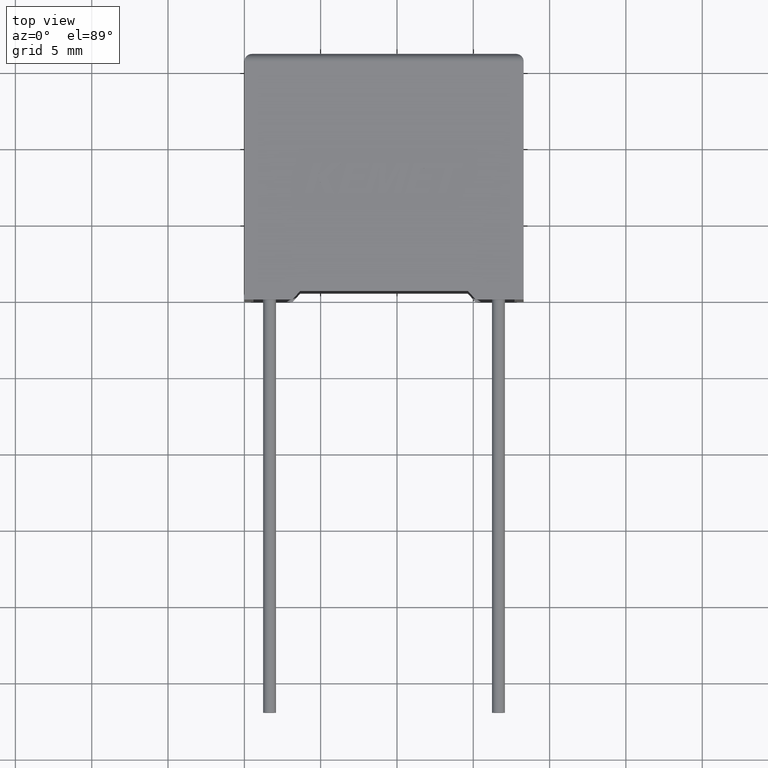
[diagram: clean part render]
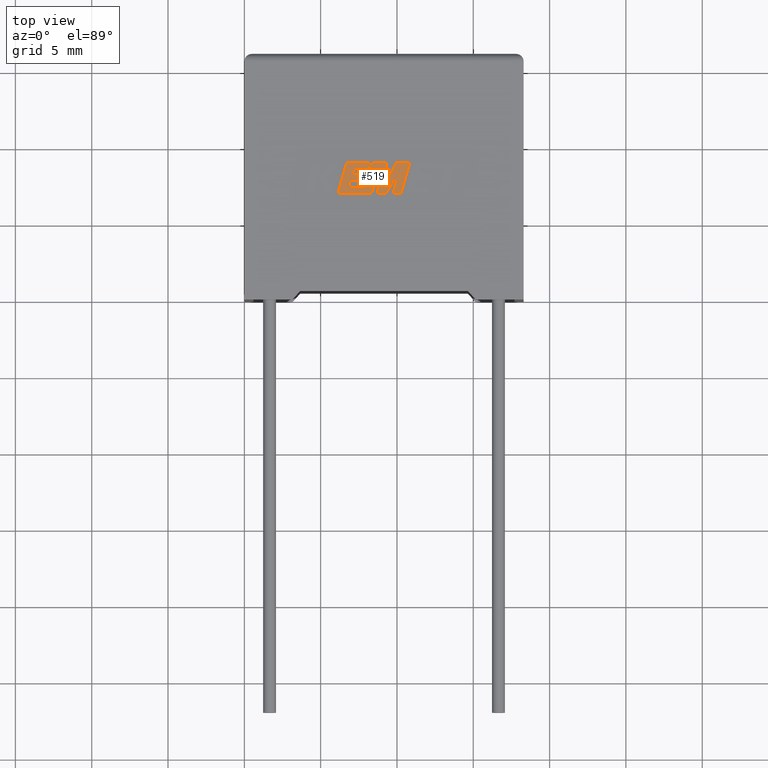
[diagram: same view with one face highlighted and labeled with its STEP entity id]
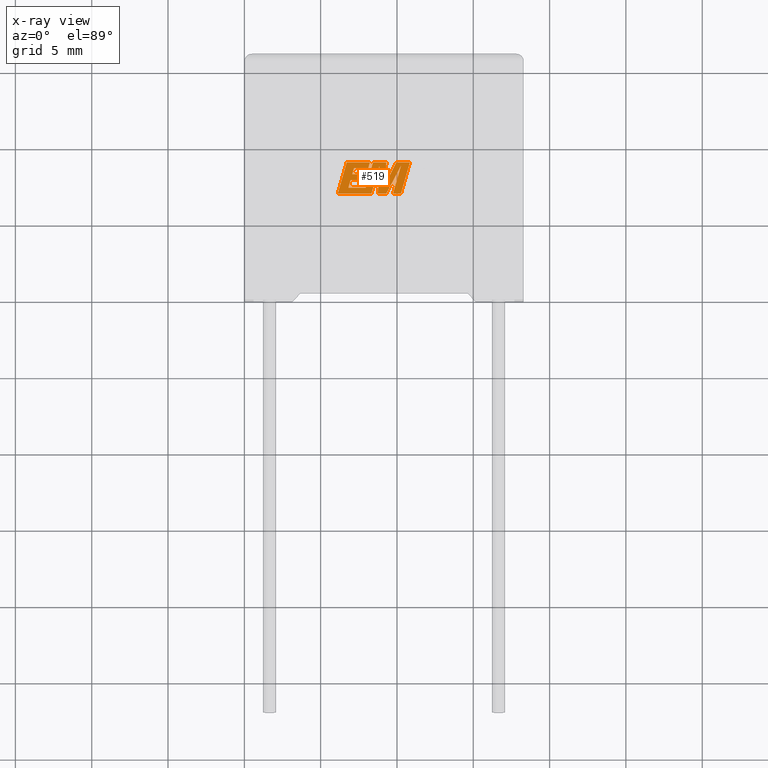
[diagram: x-ray of the same camera — body ghosted, the highlighted face saturated]
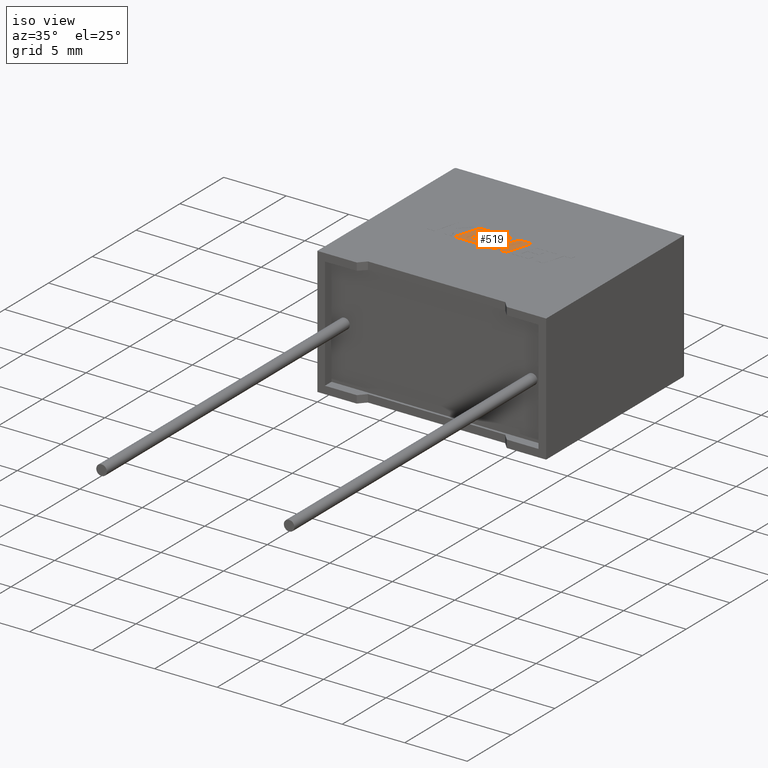
[diagram: same view with one face highlighted and labeled with its STEP entity id]
A machine part, top view. The second image highlights one B-rep face of the part: STEP entity #519.
The next image is the same camera in x-ray: the body ghosted, the highlighted face saturated — about 0% of this face is hidden behind the body in this view.
A second angle (iso view) of the same face is appended — the face is thin or edge-on in the first view.
In plain terms, the highlighted planar face has unit normal (0, 0, -1).
Its self-contained STEP definition (entity closure, byte-faithful):
#2 = DIRECTION ( 'NONE',  ( 1.000000000000000000, 4.783739767952858963E-16, 0.000000000000000000 ) ) ;
#4 = CARTESIAN_POINT ( 'NONE',  ( 9.300475089700450226, 8.977583738474084640, 10.20499999999999829 ) ) ;
#6 = DIRECTION ( 'NONE',  ( -1.000000000000000000, 0.000000000000000000, 0.000000000000000000 ) ) ;
#21 = CARTESIAN_POINT ( 'NONE',  ( 6.814202693454946669, 7.317796892129776687, 10.20499999999999829 ) ) ;
#46 = VECTOR ( 'NONE', #1173, 1000.000000000000000 ) ;
#49 = CARTESIAN_POINT ( 'NONE',  ( 9.736741848859448822, 6.927829999999937094, 10.20499999999999829 ) ) ;
#73 = CARTESIAN_POINT ( 'NONE',  ( 8.748873504561524683, 6.927829999999937094, 10.20499999999999829 ) ) ;
#111 = DIRECTION ( 'NONE',  ( -0.4443210308329518243, -0.8958676361826801715, 0.000000000000000000 ) ) ;
#137 = VERTEX_POINT ( 'NONE', #652 ) ;
#171 = EDGE_CURVE ( 'NONE', #1276, #3015, #2109, .T. ) ;
#181 = VECTOR ( 'NONE', #6, 1000.000000000000000 ) ;
#187 = CARTESIAN_POINT ( 'NONE',  ( 8.223106891968908982, 8.977583738474084640, 10.20499999999999829 ) ) ;
#208 = ORIENTED_EDGE ( 'NONE', *, *, #671, .T. ) ;
#212 = DIRECTION ( 'NONE',  ( -0.2765379750249963853, -0.9610029908221278117, 0.000000000000000000 ) ) ;
#217 = EDGE_CURVE ( 'NONE', #374, #2048, #1009, .T. ) ;
#221 = VERTEX_POINT ( 'NONE', #1272 ) ;
#253 = EDGE_CURVE ( 'NONE', #1435, #2728, #305, .T. ) ;
#255 = CARTESIAN_POINT ( 'NONE',  ( 9.221647422191399102, 7.513213331603875389, 10.20499999999999829 ) ) ;
#259 = LINE ( 'NONE', #647, #916 ) ;
#287 = DIRECTION ( 'NONE',  ( -0.05596501978069369498, -0.9984327301130239141, 0.000000000000000000 ) ) ;
#288 = EDGE_CURVE ( 'NONE', #2048, #590, #1489, .T. ) ;
#305 = LINE ( 'NONE', #2382, #1980 ) ;
#322 = ORIENTED_EDGE ( 'NONE', *, *, #1758, .T. ) ;
#330 = DIRECTION ( 'NONE',  ( -1.000000000000000000, 0.000000000000000000, 0.000000000000000000 ) ) ;
#366 = CARTESIAN_POINT ( 'NONE',  ( 10.84693527213674891, 8.977583738474084640, 10.20499999999999829 ) ) ;
#374 = VERTEX_POINT ( 'NONE', #2555 ) ;
#398 = EDGE_CURVE ( 'NONE', #2728, #137, #1652, .T. ) ;
#410 = LINE ( 'NONE', #1593, #2690 ) ;
#425 = DIRECTION ( 'NONE',  ( 0.2759782365590697228, 0.9611638845408965182, 0.000000000000000000 ) ) ;
#430 = VERTEX_POINT ( 'NONE', #987 ) ;
#438 = CARTESIAN_POINT ( 'NONE',  ( 6.814202693454946669, 7.317796892129776687, 10.20499999999999829 ) ) ;
#444 = CARTESIAN_POINT ( 'NONE',  ( 9.221647422191399102, 7.513213331603875389, 10.20499999999999829 ) ) ;
#446 = LINE ( 'NONE', #3041, #849 ) ;
#473 = VECTOR ( 'NONE', #662, 1000.000000000000000 ) ;
#519 = ADVANCED_FACE ( 'NONE', ( #2472 ), #1021, .F. ) ;
#520 = EDGE_CURVE ( 'NONE', #221, #2698, #2508, .T. ) ;
#522 = LINE ( 'NONE', #1454, #844 ) ;
#565 = VERTEX_POINT ( 'NONE', #2456 ) ;
#590 = VERTEX_POINT ( 'NONE', #2575 ) ;
#619 = CARTESIAN_POINT ( 'NONE',  ( -0.2224830842431323175, 0.2934434973618236242, 10.20499999999999829 ) ) ;
#621 = EDGE_CURVE ( 'NONE', #565, #2033, #2077, .T. ) ;
#642 = DIRECTION ( 'NONE',  ( 0.2763139702539113007, 0.9610674221107073922, 0.000000000000000000 ) ) ;
#647 = CARTESIAN_POINT ( 'NONE',  ( 7.178404472403894232, 8.587423639161658073, 10.20499999999999829 ) ) ;
#651 = VERTEX_POINT ( 'NONE', #73 ) ;
#652 = CARTESIAN_POINT ( 'NONE',  ( 7.067466152442150040, 8.206169767896147604, 10.20499999999999829 ) ) ;
#662 = DIRECTION ( 'NONE',  ( -1.000000000000000000, 0.000000000000000000, 0.000000000000000000 ) ) ;
#671 = EDGE_CURVE ( 'NONE', #2938, #374, #2374, .T. ) ;
#695 = CARTESIAN_POINT ( 'NONE',  ( 9.300475089700450226, 8.977583738474084640, 10.20499999999999829 ) ) ;
#707 = EDGE_CURVE ( 'NONE', #2698, #1308, #1255, .T. ) ;
#763 = ORIENTED_EDGE ( 'NONE', *, *, #1000, .T. ) ;
#768 = DIRECTION ( 'NONE',  ( 0.2732148821746286371, 0.9619530280415482526, 0.000000000000000000 ) ) ;
#805 = VERTEX_POINT ( 'NONE', #1667 ) ;
#818 = EDGE_CURVE ( 'NONE', #2442, #651, #522, .T. ) ;
#823 = DIRECTION ( 'NONE',  ( 0.000000000000000000, 0.000000000000000000, -1.000000000000000000 ) ) ;
#844 = VECTOR ( 'NONE', #287, 1000.000000000000227 ) ;
#849 = VECTOR ( 'NONE', #1908, 1000.000000000000000 ) ;
#862 = ORIENTED_EDGE ( 'NONE', *, *, #288, .T. ) ;
#867 = CARTESIAN_POINT ( 'NONE',  ( 9.736741848859448822, 6.927829999999937094, 10.20499999999999829 ) ) ;
#885 = CARTESIAN_POINT ( 'NONE',  ( 9.295319520239521793, 6.927829999999937094, 10.20499999999999829 ) ) ;
#892 = ORIENTED_EDGE ( 'NONE', *, *, #915, .T. ) ;
#898 = DIRECTION ( 'NONE',  ( 0.2740217765954066076, 0.9617234872620595842, 0.000000000000000000 ) ) ;
#899 = VERTEX_POINT ( 'NONE', #444 ) ;
#902 = VECTOR ( 'NONE', #1004, 1000.000000000000227 ) ;
#915 = EDGE_CURVE ( 'NONE', #3015, #2442, #410, .T. ) ;
#916 = VECTOR ( 'NONE', #1157, 1000.000000000000000 ) ;
#927 = VERTEX_POINT ( 'NONE', #2308 ) ;
#934 = CARTESIAN_POINT ( 'NONE',  ( 6.959357382888240018, 7.827240615357460740, 10.20499999999999829 ) ) ;
#948 = VECTOR ( 'NONE', #1284, 1000.000000000000227 ) ;
#982 = ORIENTED_EDGE ( 'NONE', *, *, #253, .T. ) ;
#987 = CARTESIAN_POINT ( 'NONE',  ( 8.112293221804671717, 8.587423639161658073, 10.20499999999999829 ) ) ;
#996 = EDGE_CURVE ( 'NONE', #2919, #1435, #1781, .T. ) ;
#1000 = EDGE_CURVE ( 'NONE', #927, #899, #2912, .T. ) ;
#1004 = DIRECTION ( 'NONE',  ( 0.2793947940878294123, 0.9601763114327593884, 0.000000000000000000 ) ) ;
#1009 = LINE ( 'NONE', #2860, #2186 ) ;
#1017 = EDGE_CURVE ( 'NONE', #137, #1165, #1267, .T. ) ;
#1021 = PLANE ( 'NONE',  #2796 ) ;
#1039 = CARTESIAN_POINT ( 'NONE',  ( 7.178404472403894232, 8.587423639161658073, 10.20499999999999829 ) ) ;
#1086 = EDGE_CURVE ( 'NONE', #2033, #1276, #2069, .T. ) ;
#1102 = VECTOR ( 'NONE', #212, 999.9999999999998863 ) ;
#1157 = DIRECTION ( 'NONE',  ( 1.000000000000000000, 0.000000000000000000, 0.000000000000000000 ) ) ;
#1165 = VERTEX_POINT ( 'NONE', #1039 ) ;
#1173 = DIRECTION ( 'NONE',  ( 0.05375259206908576670, 0.9985542843760946141, 0.000000000000000000 ) ) ;
#1209 = ORIENTED_EDGE ( 'NONE', *, *, #1086, .T. ) ;
#1231 = DIRECTION ( 'NONE',  ( -0.2760118818968579912, -0.9611542233438683525, 0.000000000000000000 ) ) ;
#1233 = DIRECTION ( 'NONE',  ( 0.4668459304955080436, 0.8843386665637680277, 0.000000000000000000 ) ) ;
#1255 = LINE ( 'NONE', #1476, #2046 ) ;
#1257 = ORIENTED_EDGE ( 'NONE', *, *, #818, .T. ) ;
#1267 = LINE ( 'NONE', #1485, #902 ) ;
#1272 = CARTESIAN_POINT ( 'NONE',  ( 8.427557490167984611, 8.977583738474084640, 10.20499999999999829 ) ) ;
#1276 = VERTEX_POINT ( 'NONE', #1484 ) ;
#1283 = DIRECTION ( 'NONE',  ( 1.000000000000000000, 0.000000000000000000, 0.000000000000000000 ) ) ;
#1284 = DIRECTION ( 'NONE',  ( -0.2762517575166416606, -0.9610853065513833560, 0.000000000000000000 ) ) ;
#1305 = CARTESIAN_POINT ( 'NONE',  ( 8.327195703898469858, 6.927829999999937094, 10.20499999999999829 ) ) ;
#1308 = VERTEX_POINT ( 'NONE', #21 ) ;
#1310 = ORIENTED_EDGE ( 'NONE', *, *, #707, .T. ) ;
#1352 = VECTOR ( 'NONE', #2, 1000.000000000000000 ) ;
#1375 = EDGE_CURVE ( 'NONE', #1579, #221, #1630, .T. ) ;
#1395 = EDGE_CURVE ( 'NONE', #651, #2938, #446, .T. ) ;
#1435 = VERTEX_POINT ( 'NONE', #2061 ) ;
#1454 = CARTESIAN_POINT ( 'NONE',  ( 8.851161128560534053, 8.752671875984306737, 10.20499999999999829 ) ) ;
#1462 = ORIENTED_EDGE ( 'NONE', *, *, #2287, .T. ) ;
#1476 = CARTESIAN_POINT ( 'NONE',  ( 7.950472854412912405, 7.317796892129776687, 10.20499999999999829 ) ) ;
#1484 = CARTESIAN_POINT ( 'NONE',  ( 6.118980910089239167, 6.927829999999936206, 10.20499999999999829 ) ) ;
#1485 = CARTESIAN_POINT ( 'NONE',  ( 7.067466152442150040, 8.206169767896147604, 10.20499999999999829 ) ) ;
#1489 = LINE ( 'NONE', #49, #2792 ) ;
#1519 = ORIENTED_EDGE ( 'NONE', *, *, #1395, .T. ) ;
#1579 = VERTEX_POINT ( 'NONE', #4 ) ;
#1583 = ORIENTED_EDGE ( 'NONE', *, *, #398, .T. ) ;
#1589 = LINE ( 'NONE', #438, #2394 ) ;
#1593 = CARTESIAN_POINT ( 'NONE',  ( 8.327195703898469858, 6.927829999999937094, 10.20499999999999829 ) ) ;
#1630 = LINE ( 'NONE', #695, #181 ) ;
#1652 = LINE ( 'NONE', #2608, #473 ) ;
#1667 = CARTESIAN_POINT ( 'NONE',  ( 10.84693527213674891, 8.977583738474084640, 10.20499999999999829 ) ) ;
#1700 = ORIENTED_EDGE ( 'NONE', *, *, #2219, .T. ) ;
#1732 = LINE ( 'NONE', #366, #1748 ) ;
#1748 = VECTOR ( 'NONE', #330, 1000.000000000000000 ) ;
#1758 = EDGE_CURVE ( 'NONE', #590, #805, #2278, .T. ) ;
#1760 = ORIENTED_EDGE ( 'NONE', *, *, #2111, .T. ) ;
#1781 = LINE ( 'NONE', #2724, #2190 ) ;
#1828 = DIRECTION ( 'NONE',  ( -1.000000000000000000, 0.000000000000000000, 0.000000000000000000 ) ) ;
#1908 = DIRECTION ( 'NONE',  ( 1.000000000000000000, 0.000000000000000000, 0.000000000000000000 ) ) ;
#1923 = DIRECTION ( 'NONE',  ( 1.000000000000000000, 0.000000000000000000, 0.000000000000000000 ) ) ;
#1943 = CARTESIAN_POINT ( 'NONE',  ( 7.950472854412912405, 7.317796892129776687, 10.20499999999999829 ) ) ;
#1966 = ORIENTED_EDGE ( 'NONE', *, *, #520, .T. ) ;
#1980 = VECTOR ( 'NONE', #2666, 1000.000000000000000 ) ;
#2003 = CARTESIAN_POINT ( 'NONE',  ( 8.427557490167984611, 8.977583738474084640, 10.20499999999999829 ) ) ;
#2033 = VERTEX_POINT ( 'NONE', #2098 ) ;
#2036 = EDGE_CURVE ( 'NONE', #1308, #2919, #1589, .T. ) ;
#2046 = VECTOR ( 'NONE', #2398, 1000.000000000000000 ) ;
#2048 = VERTEX_POINT ( 'NONE', #867 ) ;
#2061 = CARTESIAN_POINT ( 'NONE',  ( 7.839011005306755209, 7.827240615357460740, 10.20499999999999829 ) ) ;
#2069 = LINE ( 'NONE', #2318, #1102 ) ;
#2076 = EDGE_LOOP ( 'NONE', ( #1760, #763, #1462, #2540, #1966, #1310, #2232, #2342, #982, #1583, #2789, #2715, #1700, #2600, #1209, #2407, #892, #1257, #1519, #208, #2793, #862, #322 ) ) ;
#2077 = LINE ( 'NONE', #187, #2846 ) ;
#2098 = CARTESIAN_POINT ( 'NONE',  ( 6.708817521994718369, 8.977583738474084640, 10.20499999999999829 ) ) ;
#2109 = LINE ( 'NONE', #2135, #1352 ) ;
#2111 = EDGE_CURVE ( 'NONE', #805, #927, #1732, .T. ) ;
#2135 = CARTESIAN_POINT ( 'NONE',  ( 6.118980910089239167, 6.927829999999936206, 10.20499999999999829 ) ) ;
#2186 = VECTOR ( 'NONE', #1231, 1000.000000000000227 ) ;
#2190 = VECTOR ( 'NONE', #1283, 1000.000000000000000 ) ;
#2211 = CARTESIAN_POINT ( 'NONE',  ( 7.947244424658283179, 8.206169767896147604, 10.20499999999999829 ) ) ;
#2219 = EDGE_CURVE ( 'NONE', #430, #565, #2504, .T. ) ;
#2232 = ORIENTED_EDGE ( 'NONE', *, *, #2036, .T. ) ;
#2240 = DIRECTION ( 'NONE',  ( -1.000000000000000000, 0.000000000000000000, 0.000000000000000000 ) ) ;
#2241 = VECTOR ( 'NONE', #1233, 1000.000000000000000 ) ;
#2278 = LINE ( 'NONE', #2783, #2652 ) ;
#2287 = EDGE_CURVE ( 'NONE', #899, #1579, #2886, .T. ) ;
#2308 = CARTESIAN_POINT ( 'NONE',  ( 9.947927223384223083, 8.977583738474084640, 10.20499999999999829 ) ) ;
#2318 = CARTESIAN_POINT ( 'NONE',  ( 6.708817521994718369, 8.977583738474084640, 10.20499999999999829 ) ) ;
#2342 = ORIENTED_EDGE ( 'NONE', *, *, #996, .T. ) ;
#2374 = LINE ( 'NONE', #2642, #2241 ) ;
#2382 = CARTESIAN_POINT ( 'NONE',  ( 7.839011005306755209, 7.827240615357460740, 10.20499999999999829 ) ) ;
#2394 = VECTOR ( 'NONE', #898, 1000.000000000000114 ) ;
#2398 = DIRECTION ( 'NONE',  ( -1.000000000000000000, 0.000000000000000000, 0.000000000000000000 ) ) ;
#2407 = ORIENTED_EDGE ( 'NONE', *, *, #171, .T. ) ;
#2442 = VERTEX_POINT ( 'NONE', #2513 ) ;
#2456 = CARTESIAN_POINT ( 'NONE',  ( 8.223106891968908982, 8.977583738474084640, 10.20499999999999829 ) ) ;
#2471 = CARTESIAN_POINT ( 'NONE',  ( 9.947927223384223083, 8.977583738474084640, 10.20499999999999829 ) ) ;
#2472 = FACE_OUTER_BOUND ( 'NONE', #2076, .T. ) ;
#2504 = LINE ( 'NONE', #2672, #3054 ) ;
#2508 = LINE ( 'NONE', #2003, #948 ) ;
#2513 = CARTESIAN_POINT ( 'NONE',  ( 8.851161128560534053, 8.752671875984306737, 10.20499999999999829 ) ) ;
#2540 = ORIENTED_EDGE ( 'NONE', *, *, #1375, .T. ) ;
#2542 = VECTOR ( 'NONE', #111, 1000.000000000000227 ) ;
#2555 = CARTESIAN_POINT ( 'NONE',  ( 10.26329998931311138, 8.761459686718483297, 10.20499999999999829 ) ) ;
#2575 = CARTESIAN_POINT ( 'NONE',  ( 10.25761595853780150, 6.927829999999937094, 10.20499999999999829 ) ) ;
#2600 = ORIENTED_EDGE ( 'NONE', *, *, #621, .T. ) ;
#2608 = CARTESIAN_POINT ( 'NONE',  ( 7.947244424658283179, 8.206169767896147604, 10.20499999999999829 ) ) ;
#2642 = CARTESIAN_POINT ( 'NONE',  ( 9.295319520239521793, 6.927829999999937094, 10.20499999999999829 ) ) ;
#2652 = VECTOR ( 'NONE', #642, 1000.000000000000114 ) ;
#2666 = DIRECTION ( 'NONE',  ( 0.2746459304916892830, 0.9615454294334481178, 0.000000000000000000 ) ) ;
#2672 = CARTESIAN_POINT ( 'NONE',  ( 8.112293221804671717, 8.587423639161658073, 10.20499999999999829 ) ) ;
#2690 = VECTOR ( 'NONE', #425, 1000.000000000000227 ) ;
#2698 = VERTEX_POINT ( 'NONE', #1943 ) ;
#2715 = ORIENTED_EDGE ( 'NONE', *, *, #2989, .T. ) ;
#2724 = CARTESIAN_POINT ( 'NONE',  ( 6.959357382888240018, 7.827240615357460740, 10.20499999999999829 ) ) ;
#2728 = VERTEX_POINT ( 'NONE', #2211 ) ;
#2783 = CARTESIAN_POINT ( 'NONE',  ( 10.25761595853780150, 6.927829999999937094, 10.20499999999999829 ) ) ;
#2789 = ORIENTED_EDGE ( 'NONE', *, *, #1017, .T. ) ;
#2792 = VECTOR ( 'NONE', #1923, 1000.000000000000000 ) ;
#2793 = ORIENTED_EDGE ( 'NONE', *, *, #217, .T. ) ;
#2796 = AXIS2_PLACEMENT_3D ( 'NONE', #619, #823, #2240 ) ;
#2846 = VECTOR ( 'NONE', #1828, 1000.000000000000000 ) ;
#2860 = CARTESIAN_POINT ( 'NONE',  ( 10.26329998931311138, 8.761459686718483297, 10.20499999999999829 ) ) ;
#2886 = LINE ( 'NONE', #255, #46 ) ;
#2912 = LINE ( 'NONE', #2471, #2542 ) ;
#2919 = VERTEX_POINT ( 'NONE', #934 ) ;
#2938 = VERTEX_POINT ( 'NONE', #885 ) ;
#2989 = EDGE_CURVE ( 'NONE', #1165, #430, #259, .T. ) ;
#3015 = VERTEX_POINT ( 'NONE', #1305 ) ;
#3041 = CARTESIAN_POINT ( 'NONE',  ( 8.748873504561524683, 6.927829999999937094, 10.20499999999999829 ) ) ;
#3054 = VECTOR ( 'NONE', #768, 1000.000000000000227 ) ;